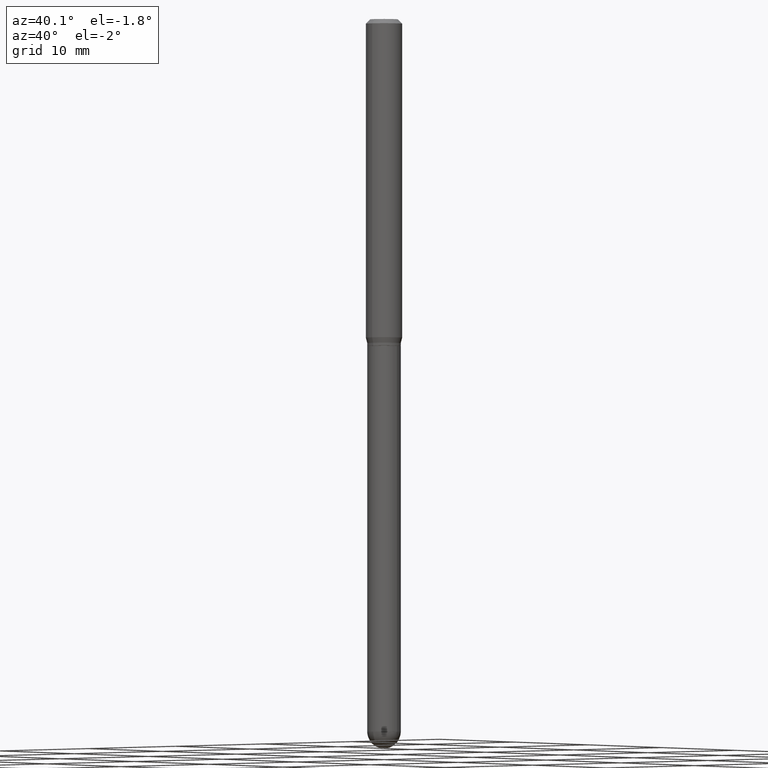
[diagram: clean part render]
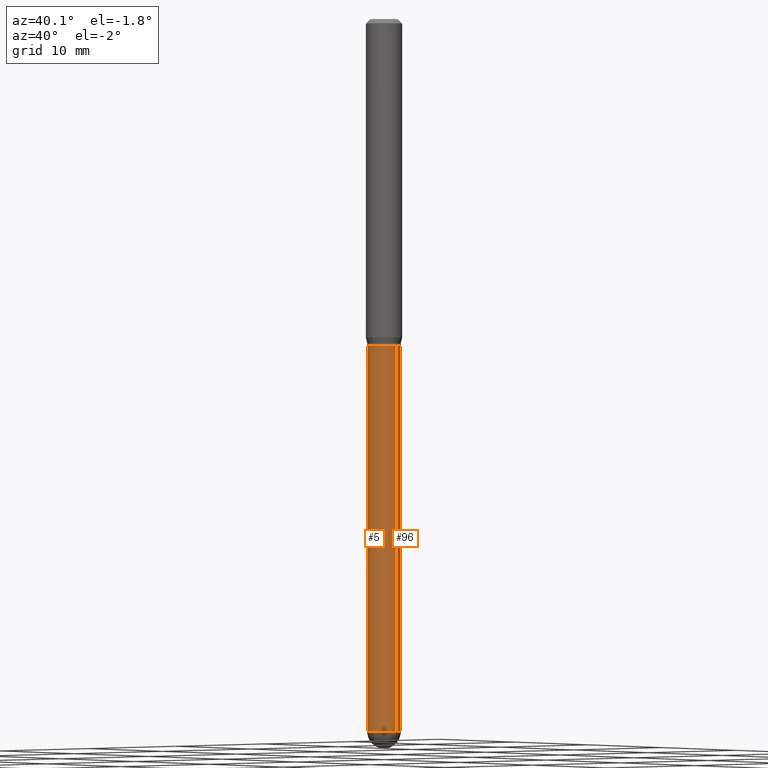
[diagram: same view with one multi-face feature highlighted, each face labeled with its STEP entity id]
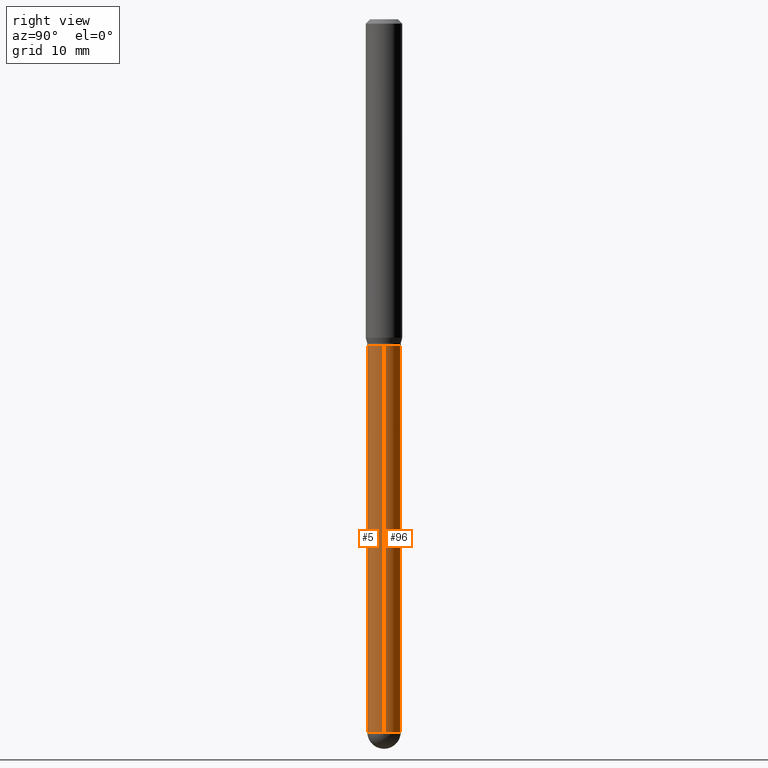
[diagram: same view with one multi-face feature highlighted, each face labeled with its STEP entity id]
A machine part, auxiliary view. The highlighted faces form ONE feature: a constant-radius fillet chain: 2 tangent blend faces with common blend radius 1.4605 mm. The faces share edges in the B-rep.
A second angle (right view) of the same feature is appended — it is thin or edge-on in the first view.
Their STEP definitions:
[1] entity #96 (Cylinder):
#11 = CARTESIAN_POINT ( 'NONE',  ( 0.05750000000000000250, -4.311979453471284209E-15, -1.120000000000000329 ) ) ;
#50 = VERTEX_POINT ( 'NONE', #11 ) ;
#54 = CARTESIAN_POINT ( 'NONE',  ( 4.015203539670203189E-16, 0.05749999999999149541, -2.442500000000000338 ) ) ;
#65 = CARTESIAN_POINT ( 'NONE',  ( -0.05750000000000000250, -5.810639061752296196E-15, -2.442499999999999893 ) ) ;
#90 = LINE ( 'NONE', #248, #116 ) ;
#96 = ADVANCED_FACE ( 'NONE', ( #485 ), #130, .T. ) ;
#98 = DIRECTION ( 'NONE',  ( -2.445468806185136597E-29, 3.491481338843145583E-15, 1.000000000000000000 ) ) ;
#107 = CARTESIAN_POINT ( 'NONE',  ( 0.05750000000000000250, -6.620721488781313792E-15, -2.442499999999999893 ) ) ;
#112 = AXIS2_PLACEMENT_3D ( 'NONE', #349, #98, #256 ) ;
#116 = VECTOR ( 'NONE', #405, 39.37007874015748143 ) ;
#121 = VERTEX_POINT ( 'NONE', #107 ) ;
#130 = CYLINDRICAL_SURFACE ( 'NONE', #429, 0.05750000000000000250 ) ;
#143 = VERTEX_POINT ( 'NONE', #65 ) ;
#147 = EDGE_LOOP ( 'NONE', ( #200, #318, #369, #361, #354 ) ) ;
#150 = DIRECTION ( 'NONE',  ( 1.000000000000000000, -6.982962677686265133E-15, 0.000000000000000000 ) ) ;
#154 = CARTESIAN_POINT ( 'NONE',  ( -0.05750000000000000250, -5.810639061752296196E-15, -1.120000000000000329 ) ) ;
#164 = DIRECTION ( 'NONE',  ( -2.445468806185136597E-29, 3.491481338843145583E-15, 1.000000000000000000 ) ) ;
#185 = CIRCLE ( 'NONE', #112, 0.05750000000000000250 ) ;
#186 = DIRECTION ( 'NONE',  ( 1.000000000000000000, -6.982962677686265922E-15, 4.876176775795935232E-29 ) ) ;
#187 = DIRECTION ( 'NONE',  ( -2.445468806185136877E-29, 3.491481338843145188E-15, 1.000000000000000000 ) ) ;
#188 = CARTESIAN_POINT ( 'NONE',  ( 2.738925062927354020E-29, -3.910459099504324188E-15, -1.120000000000000329 ) ) ;
#200 = ORIENTED_EDGE ( 'NONE', *, *, #505, .T. ) ;
#203 = EDGE_CURVE ( 'NONE', #50, #466, #264, .T. ) ;
#248 = CARTESIAN_POINT ( 'NONE',  ( 0.05750000000000000250, -4.015203539669603161E-16, 2.803801646082662941E-30 ) ) ;
#256 = DIRECTION ( 'NONE',  ( 1.000000000000000000, -6.982962677686273810E-15, 0.000000000000000000 ) ) ;
#264 = CIRCLE ( 'NONE', #509, 0.05750000000000000250 ) ;
#267 = DIRECTION ( 'NONE',  ( -2.445468806185136597E-29, 3.491481338843145583E-15, 1.000000000000000000 ) ) ;
#291 = CARTESIAN_POINT ( 'NONE',  ( 0.000000000000000000, 0.000000000000000000, 0.000000000000000000 ) ) ;
#315 = EDGE_CURVE ( 'NONE', #121, #335, #185, .T. ) ;
#318 = ORIENTED_EDGE ( 'NONE', *, *, #453, .T. ) ;
#335 = VERTEX_POINT ( 'NONE', #54 ) ;
#339 = VECTOR ( 'NONE', #187, 39.37007874015748143 ) ;
#349 = CARTESIAN_POINT ( 'NONE',  ( 5.973057559107196227E-29, -8.527943170124383355E-15, -2.442499999999999893 ) ) ;
#351 = DIRECTION ( 'NONE',  ( 1.000000000000000000, -6.982962677686273810E-15, 0.000000000000000000 ) ) ;
#354 = ORIENTED_EDGE ( 'NONE', *, *, #315, .T. ) ;
#361 = ORIENTED_EDGE ( 'NONE', *, *, #422, .F. ) ;
#369 = ORIENTED_EDGE ( 'NONE', *, *, #203, .F. ) ;
#374 = CARTESIAN_POINT ( 'NONE',  ( -0.05750000000000000250, 4.085620730620576246E-16, -2.828387676896570712E-30 ) ) ;
#386 = CARTESIAN_POINT ( 'NONE',  ( 5.973057559107196227E-29, -8.527943170124383355E-15, -2.442499999999999893 ) ) ;
#405 = DIRECTION ( 'NONE',  ( -2.445468806185136877E-29, 3.491481338843145188E-15, 1.000000000000000000 ) ) ;
#422 = EDGE_CURVE ( 'NONE', #121, #50, #90, .T. ) ;
#429 = AXIS2_PLACEMENT_3D ( 'NONE', #291, #439, #186 ) ;
#439 = DIRECTION ( 'NONE',  ( -2.445468806185136597E-29, 3.491481338843145583E-15, 1.000000000000000000 ) ) ;
#453 = EDGE_CURVE ( 'NONE', #143, #466, #455, .T. ) ;
#455 = LINE ( 'NONE', #374, #339 ) ;
#460 = AXIS2_PLACEMENT_3D ( 'NONE', #386, #164, #351 ) ;
#466 = VERTEX_POINT ( 'NONE', #154 ) ;
#485 = FACE_OUTER_BOUND ( 'NONE', #147, .T. ) ;
#499 = CIRCLE ( 'NONE', #460, 0.05750000000000000250 ) ;
#505 = EDGE_CURVE ( 'NONE', #335, #143, #499, .T. ) ;
#509 = AXIS2_PLACEMENT_3D ( 'NONE', #188, #267, #150 ) ;
[2] entity #5 (Cylinder):
#3 = ORIENTED_EDGE ( 'NONE', *, *, #29, .T. ) ;
#5 = ADVANCED_FACE ( 'NONE', ( #404 ), #366, .T. ) ;
#8 = DIRECTION ( 'NONE',  ( 1.000000000000000000, -6.982962677686265922E-15, 4.876176775795935232E-29 ) ) ;
#11 = CARTESIAN_POINT ( 'NONE',  ( 0.05750000000000000250, -4.311979453471284209E-15, -1.120000000000000329 ) ) ;
#26 = AXIS2_PLACEMENT_3D ( 'NONE', #61, #224, #220 ) ;
#29 = EDGE_CURVE ( 'NONE', #207, #121, #384, .T. ) ;
#32 = DIRECTION ( 'NONE',  ( -2.445468806185136597E-29, 3.491481338843145583E-15, 1.000000000000000000 ) ) ;
#42 = CIRCLE ( 'NONE', #26, 0.05750000000000000250 ) ;
#50 = VERTEX_POINT ( 'NONE', #11 ) ;
#61 = CARTESIAN_POINT ( 'NONE',  ( 5.973057559107196227E-29, -8.527943170124383355E-15, -2.442499999999999893 ) ) ;
#65 = CARTESIAN_POINT ( 'NONE',  ( -0.05750000000000000250, -5.810639061752296196E-15, -2.442499999999999893 ) ) ;
#71 = CIRCLE ( 'NONE', #341, 0.05750000000000000250 ) ;
#76 = ORIENTED_EDGE ( 'NONE', *, *, #453, .F. ) ;
#88 = DIRECTION ( 'NONE',  ( -2.445468806185136597E-29, 3.491481338843145583E-15, 1.000000000000000000 ) ) ;
#90 = LINE ( 'NONE', #248, #116 ) ;
#107 = CARTESIAN_POINT ( 'NONE',  ( 0.05750000000000000250, -6.620721488781313792E-15, -2.442499999999999893 ) ) ;
#109 = EDGE_CURVE ( 'NONE', #143, #207, #42, .T. ) ;
#111 = CARTESIAN_POINT ( 'NONE',  ( 2.738925062927354020E-29, -3.910459099504324188E-15, -1.120000000000000329 ) ) ;
#116 = VECTOR ( 'NONE', #405, 39.37007874015748143 ) ;
#121 = VERTEX_POINT ( 'NONE', #107 ) ;
#124 = EDGE_LOOP ( 'NONE', ( #76, #287, #3, #163, #320 ) ) ;
#143 = VERTEX_POINT ( 'NONE', #65 ) ;
#154 = CARTESIAN_POINT ( 'NONE',  ( -0.05750000000000000250, -5.810639061752296196E-15, -1.120000000000000329 ) ) ;
#163 = ORIENTED_EDGE ( 'NONE', *, *, #422, .T. ) ;
#187 = DIRECTION ( 'NONE',  ( -2.445468806185136877E-29, 3.491481338843145188E-15, 1.000000000000000000 ) ) ;
#207 = VERTEX_POINT ( 'NONE', #303 ) ;
#216 = DIRECTION ( 'NONE',  ( -2.445468806185136597E-29, 3.491481338843145583E-15, 1.000000000000000000 ) ) ;
#220 = DIRECTION ( 'NONE',  ( 1.000000000000000000, -6.982962677686273810E-15, 0.000000000000000000 ) ) ;
#224 = DIRECTION ( 'NONE',  ( -2.445468806185136597E-29, 3.491481338843145583E-15, 1.000000000000000000 ) ) ;
#248 = CARTESIAN_POINT ( 'NONE',  ( 0.05750000000000000250, -4.015203539669603161E-16, 2.803801646082662941E-30 ) ) ;
#249 = DIRECTION ( 'NONE',  ( 1.000000000000000000, -6.982962677686273810E-15, 0.000000000000000000 ) ) ;
#287 = ORIENTED_EDGE ( 'NONE', *, *, #109, .T. ) ;
#288 = EDGE_CURVE ( 'NONE', #466, #50, #71, .T. ) ;
#303 = CARTESIAN_POINT ( 'NONE',  ( -4.085620730619980656E-16, -0.05750000000000857203, -2.442499999999999893 ) ) ;
#320 = ORIENTED_EDGE ( 'NONE', *, *, #288, .F. ) ;
#321 = AXIS2_PLACEMENT_3D ( 'NONE', #363, #88, #8 ) ;
#339 = VECTOR ( 'NONE', #187, 39.37007874015748143 ) ;
#341 = AXIS2_PLACEMENT_3D ( 'NONE', #111, #32, #389 ) ;
#363 = CARTESIAN_POINT ( 'NONE',  ( 0.000000000000000000, 0.000000000000000000, 0.000000000000000000 ) ) ;
#366 = CYLINDRICAL_SURFACE ( 'NONE', #321, 0.05750000000000000250 ) ;
#374 = CARTESIAN_POINT ( 'NONE',  ( -0.05750000000000000250, 4.085620730620576246E-16, -2.828387676896570712E-30 ) ) ;
#384 = CIRCLE ( 'NONE', #437, 0.05750000000000000250 ) ;
#389 = DIRECTION ( 'NONE',  ( 1.000000000000000000, -6.982962677686265133E-15, 0.000000000000000000 ) ) ;
#404 = FACE_OUTER_BOUND ( 'NONE', #124, .T. ) ;
#405 = DIRECTION ( 'NONE',  ( -2.445468806185136877E-29, 3.491481338843145188E-15, 1.000000000000000000 ) ) ;
#407 = CARTESIAN_POINT ( 'NONE',  ( 5.973057559107196227E-29, -8.527943170124383355E-15, -2.442499999999999893 ) ) ;
#422 = EDGE_CURVE ( 'NONE', #121, #50, #90, .T. ) ;
#437 = AXIS2_PLACEMENT_3D ( 'NONE', #407, #216, #249 ) ;
#453 = EDGE_CURVE ( 'NONE', #143, #466, #455, .T. ) ;
#455 = LINE ( 'NONE', #374, #339 ) ;
#466 = VERTEX_POINT ( 'NONE', #154 ) ;